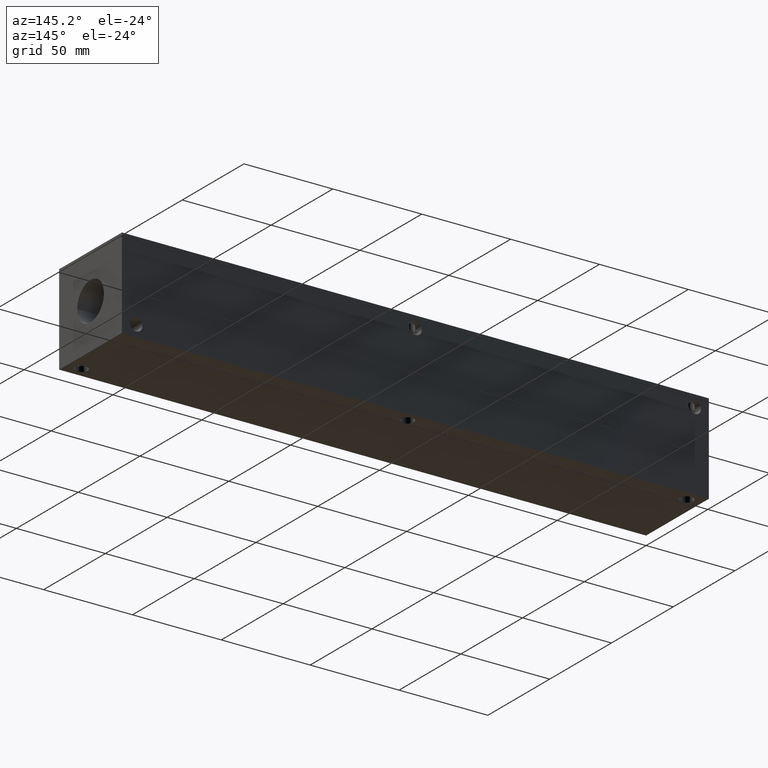
[diagram: clean part render]
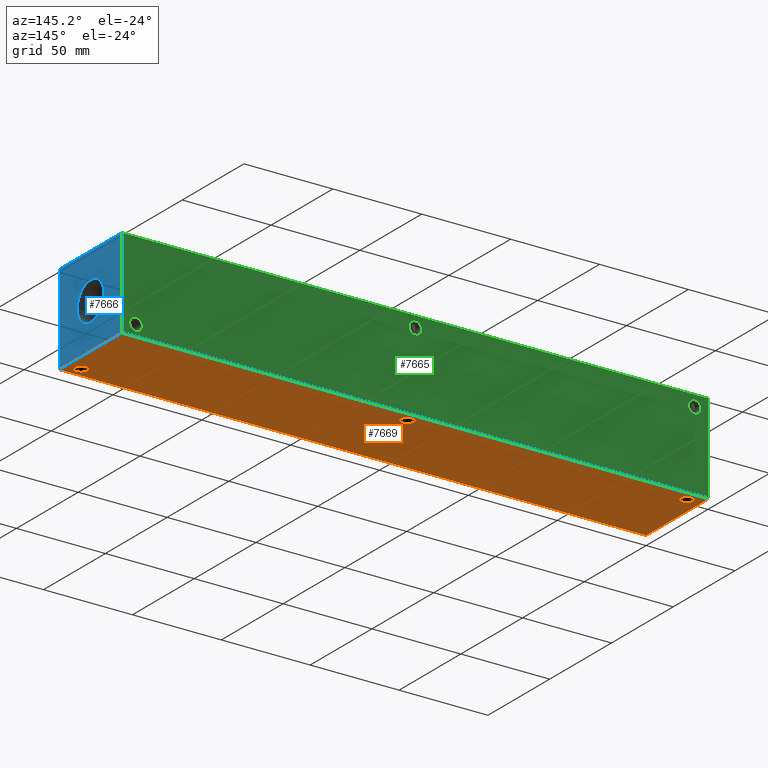
[diagram: same view with three faces highlighted in distinct colors, each labeled with its STEP entity id]
A machine part, auxiliary view with three faces highlighted in distinct colors.
Their STEP definitions:

[orange] entity #7669 — the highlighted planar face has unit normal (0, 0, 1).
#149=CIRCLE('',#7996,3.5687);
#150=CIRCLE('',#7998,3.5687);
#151=CIRCLE('',#8000,3.5687);
#263=FACE_BOUND('',#1334,.T.);
#264=FACE_BOUND('',#1335,.T.);
#265=FACE_BOUND('',#1336,.T.);
#482=PLANE('',#8082);
#874=FACE_OUTER_BOUND('',#1333,.T.);
#1333=EDGE_LOOP('',(#6842,#6843,#6844,#6845));
#1334=EDGE_LOOP('',(#6846));
#1335=EDGE_LOOP('',(#6847));
#1336=EDGE_LOOP('',(#6848));
#2017=LINE('',#13300,#2705);
#2020=LINE('',#13305,#2708);
#2022=LINE('',#13309,#2710);
#2024=LINE('',#13312,#2712);
#2705=VECTOR('',#9553,10.);
#2708=VECTOR('',#9558,10.);
#2710=VECTOR('',#9562,10.);
#2712=VECTOR('',#9566,10.);
#3616=VERTEX_POINT('',#13134);
#3617=VERTEX_POINT('',#13138);
#3618=VERTEX_POINT('',#13142);
#3671=VERTEX_POINT('',#13298);
#3672=VERTEX_POINT('',#13299);
#3673=VERTEX_POINT('',#13304);
#3674=VERTEX_POINT('',#13308);
#4652=EDGE_CURVE('',#3616,#3616,#149,.T.);
#4654=EDGE_CURVE('',#3617,#3617,#150,.T.);
#4656=EDGE_CURVE('',#3618,#3618,#151,.T.);
#4725=EDGE_CURVE('',#3671,#3672,#2017,.T.);
#4728=EDGE_CURVE('',#3673,#3671,#2020,.T.);
#4730=EDGE_CURVE('',#3674,#3673,#2022,.T.);
#4732=EDGE_CURVE('',#3672,#3674,#2024,.T.);
#6842=ORIENTED_EDGE('',*,*,#4732,.F.);
#6843=ORIENTED_EDGE('',*,*,#4725,.F.);
#6844=ORIENTED_EDGE('',*,*,#4728,.F.);
#6845=ORIENTED_EDGE('',*,*,#4730,.F.);
#6846=ORIENTED_EDGE('',*,*,#4652,.T.);
#6847=ORIENTED_EDGE('',*,*,#4654,.T.);
#6848=ORIENTED_EDGE('',*,*,#4656,.T.);
#7669=ADVANCED_FACE('',(#874,#263,#264,#265),#482,.F.);
#7996=AXIS2_PLACEMENT_3D('',#13136,#9363,#9364);
#7998=AXIS2_PLACEMENT_3D('',#13140,#9368,#9369);
#8000=AXIS2_PLACEMENT_3D('',#13144,#9373,#9374);
#8082=AXIS2_PLACEMENT_3D('',#13314,#9569,#9570);
#9363=DIRECTION('center_axis',(0.,0.,1.));
#9364=DIRECTION('ref_axis',(1.,0.,0.));
#9368=DIRECTION('center_axis',(0.,0.,1.));
#9369=DIRECTION('ref_axis',(1.,0.,0.));
#9373=DIRECTION('center_axis',(0.,0.,1.));
#9374=DIRECTION('ref_axis',(1.,0.,0.));
#9553=DIRECTION('',(0.,-1.,0.));
#9558=DIRECTION('',(-1.,0.,0.));
#9562=DIRECTION('',(0.,1.,0.));
#9566=DIRECTION('',(1.,0.,0.));
#9569=DIRECTION('center_axis',(0.,0.,1.));
#9570=DIRECTION('ref_axis',(1.,0.,0.));
#13134=CARTESIAN_POINT('',(318.7065,6.35,0.));
#13136=CARTESIAN_POINT('Origin',(322.2752,6.35,0.));
#13138=CARTESIAN_POINT('',(4.3561,44.45,0.));
#13140=CARTESIAN_POINT('Origin',(7.9248,44.45,0.));
#13142=CARTESIAN_POINT('',(161.5313,44.45,0.));
#13144=CARTESIAN_POINT('Origin',(165.1,44.45,0.));
#13298=CARTESIAN_POINT('',(0.,50.8,0.));
#13299=CARTESIAN_POINT('',(0.,0.,0.));
#13300=CARTESIAN_POINT('',(0.,50.8,0.));
#13304=CARTESIAN_POINT('',(330.2,50.8,0.));
#13305=CARTESIAN_POINT('',(330.2,50.8,0.));
#13308=CARTESIAN_POINT('',(330.2,0.,0.));
#13309=CARTESIAN_POINT('',(330.2,0.,0.));
#13312=CARTESIAN_POINT('',(0.,0.,0.));
#13314=CARTESIAN_POINT('Origin',(165.1,25.4,0.));

[blue] entity #7666 — the highlighted planar face has unit normal (1, 0, 0).
#187=CIRCLE('',#8063,10.795);
#188=CIRCLE('',#8064,10.795);
#253=FACE_BOUND('',#1321,.T.);
#479=PLANE('',#8079);
#871=FACE_OUTER_BOUND('',#1320,.T.);
#1320=EDGE_LOOP('',(#6811,#6812,#6813,#6814));
#1321=EDGE_LOOP('',(#6815,#6816));
#1583=LINE('',#11998,#2271);
#2021=LINE('',#13306,#2709);
#2022=LINE('',#13309,#2710);
#2023=LINE('',#13310,#2711);
#2271=VECTOR('',#8441,10.);
#2709=VECTOR('',#9559,10.);
#2710=VECTOR('',#9562,10.);
#2711=VECTOR('',#9563,10.);
#3270=VERTEX_POINT('',#11995);
#3271=VERTEX_POINT('',#11997);
#3661=VERTEX_POINT('',#13268);
#3662=VERTEX_POINT('',#13269);
#3673=VERTEX_POINT('',#13304);
#3674=VERTEX_POINT('',#13308);
#4147=EDGE_CURVE('',#3270,#3271,#1583,.T.);
#4711=EDGE_CURVE('',#3661,#3662,#187,.T.);
#4712=EDGE_CURVE('',#3662,#3661,#188,.T.);
#4729=EDGE_CURVE('',#3673,#3271,#2021,.T.);
#4730=EDGE_CURVE('',#3674,#3673,#2022,.T.);
#4731=EDGE_CURVE('',#3674,#3270,#2023,.T.);
#6811=ORIENTED_EDGE('',*,*,#4730,.T.);
#6812=ORIENTED_EDGE('',*,*,#4729,.T.);
#6813=ORIENTED_EDGE('',*,*,#4147,.F.);
#6814=ORIENTED_EDGE('',*,*,#4731,.F.);
#6815=ORIENTED_EDGE('',*,*,#4711,.T.);
#6816=ORIENTED_EDGE('',*,*,#4712,.T.);
#7666=ADVANCED_FACE('',(#871,#253),#479,.T.);
#8063=AXIS2_PLACEMENT_3D('',#13270,#9518,#9519);
#8064=AXIS2_PLACEMENT_3D('',#13271,#9520,#9521);
#8079=AXIS2_PLACEMENT_3D('',#13307,#9560,#9561);
#8441=DIRECTION('',(0.,1.,0.));
#9518=DIRECTION('center_axis',(-1.,0.,0.));
#9519=DIRECTION('ref_axis',(0.,1.,0.));
#9520=DIRECTION('center_axis',(-1.,0.,0.));
#9521=DIRECTION('ref_axis',(0.,1.,0.));
#9559=DIRECTION('',(0.,0.,1.));
#9560=DIRECTION('center_axis',(1.,0.,0.));
#9561=DIRECTION('ref_axis',(0.,1.,0.));
#9562=DIRECTION('',(0.,1.,0.));
#9563=DIRECTION('',(0.,0.,1.));
#11995=CARTESIAN_POINT('',(330.2,0.,50.8));
#11997=CARTESIAN_POINT('',(330.2,50.8,50.8));
#11998=CARTESIAN_POINT('',(330.2,0.,50.8));
#13268=CARTESIAN_POINT('',(330.2,36.195,25.4));
#13269=CARTESIAN_POINT('',(330.2,14.605,25.4));
#13270=CARTESIAN_POINT('Origin',(330.2,25.4,25.4));
#13271=CARTESIAN_POINT('Origin',(330.2,25.4,25.4));
#13304=CARTESIAN_POINT('',(330.2,50.8,0.));
#13306=CARTESIAN_POINT('',(330.2,50.8,0.));
#13307=CARTESIAN_POINT('Origin',(330.2,0.,0.));
#13308=CARTESIAN_POINT('',(330.2,0.,0.));
#13309=CARTESIAN_POINT('',(330.2,0.,0.));
#13310=CARTESIAN_POINT('',(330.2,0.,0.));

[green] entity #7665 — the highlighted planar face has unit normal (0, 1, 0).
#100=CIRCLE('',#7907,3.5687);
#103=CIRCLE('',#7917,3.5687);
#106=CIRCLE('',#7926,3.5687);
#250=FACE_BOUND('',#1317,.T.);
#251=FACE_BOUND('',#1318,.T.);
#252=FACE_BOUND('',#1319,.T.);
#478=PLANE('',#8078);
#870=FACE_OUTER_BOUND('',#1316,.T.);
#1316=EDGE_LOOP('',(#6804,#6805,#6806,#6807));
#1317=EDGE_LOOP('',(#6808));
#1318=EDGE_LOOP('',(#6809));
#1319=EDGE_LOOP('',(#6810));
#1584=LINE('',#12000,#2272);
#2019=LINE('',#13302,#2707);
#2020=LINE('',#13305,#2708);
#2021=LINE('',#13306,#2709);
#2272=VECTOR('',#8442,10.);
#2707=VECTOR('',#9555,10.);
#2708=VECTOR('',#9558,10.);
#2709=VECTOR('',#9559,10.);
#3271=VERTEX_POINT('',#11997);
#3272=VERTEX_POINT('',#11999);
#3557=VERTEX_POINT('',#12960);
#3562=VERTEX_POINT('',#12978);
#3567=VERTEX_POINT('',#12994);
#3671=VERTEX_POINT('',#13298);
#3673=VERTEX_POINT('',#13304);
#4148=EDGE_CURVE('',#3271,#3272,#1584,.T.);
#4569=EDGE_CURVE('',#3557,#3557,#100,.T.);
#4579=EDGE_CURVE('',#3562,#3562,#103,.T.);
#4588=EDGE_CURVE('',#3567,#3567,#106,.T.);
#4727=EDGE_CURVE('',#3671,#3272,#2019,.T.);
#4728=EDGE_CURVE('',#3673,#3671,#2020,.T.);
#4729=EDGE_CURVE('',#3673,#3271,#2021,.T.);
#6804=ORIENTED_EDGE('',*,*,#4728,.T.);
#6805=ORIENTED_EDGE('',*,*,#4727,.T.);
#6806=ORIENTED_EDGE('',*,*,#4148,.F.);
#6807=ORIENTED_EDGE('',*,*,#4729,.F.);
#6808=ORIENTED_EDGE('',*,*,#4569,.T.);
#6809=ORIENTED_EDGE('',*,*,#4579,.T.);
#6810=ORIENTED_EDGE('',*,*,#4588,.T.);
#7665=ADVANCED_FACE('',(#870,#250,#251,#252),#478,.T.);
#7907=AXIS2_PLACEMENT_3D('',#12962,#9159,#9160);
#7917=AXIS2_PLACEMENT_3D('',#12980,#9182,#9183);
#7926=AXIS2_PLACEMENT_3D('',#12996,#9202,#9203);
#8078=AXIS2_PLACEMENT_3D('',#13303,#9556,#9557);
#8442=DIRECTION('',(-1.,0.,0.));
#9159=DIRECTION('center_axis',(0.,-1.,0.));
#9160=DIRECTION('ref_axis',(1.,0.,0.));
#9182=DIRECTION('center_axis',(0.,-1.,0.));
#9183=DIRECTION('ref_axis',(1.,0.,0.));
#9202=DIRECTION('center_axis',(0.,-1.,0.));
#9203=DIRECTION('ref_axis',(1.,0.,0.));
#9555=DIRECTION('',(0.,0.,1.));
#9556=DIRECTION('center_axis',(0.,1.,0.));
#9557=DIRECTION('ref_axis',(-1.,0.,0.));
#9558=DIRECTION('',(-1.,0.,0.));
#9559=DIRECTION('',(0.,0.,1.));
#11997=CARTESIAN_POINT('',(330.2,50.8,50.8));
#11999=CARTESIAN_POINT('',(0.,50.8,50.8));
#12000=CARTESIAN_POINT('',(330.2,50.8,50.8));
#12960=CARTESIAN_POINT('',(318.7065,50.8,6.35));
#12962=CARTESIAN_POINT('Origin',(322.2752,50.8,6.35));
#12978=CARTESIAN_POINT('',(4.3561,50.8,44.45));
#12980=CARTESIAN_POINT('Origin',(7.9248,50.8,44.45));
#12994=CARTESIAN_POINT('',(161.5313,50.8,44.45));
#12996=CARTESIAN_POINT('Origin',(165.1,50.8,44.45));
#13298=CARTESIAN_POINT('',(0.,50.8,0.));
#13302=CARTESIAN_POINT('',(0.,50.8,0.));
#13303=CARTESIAN_POINT('Origin',(330.2,50.8,0.));
#13304=CARTESIAN_POINT('',(330.2,50.8,0.));
#13305=CARTESIAN_POINT('',(330.2,50.8,0.));
#13306=CARTESIAN_POINT('',(330.2,50.8,0.));